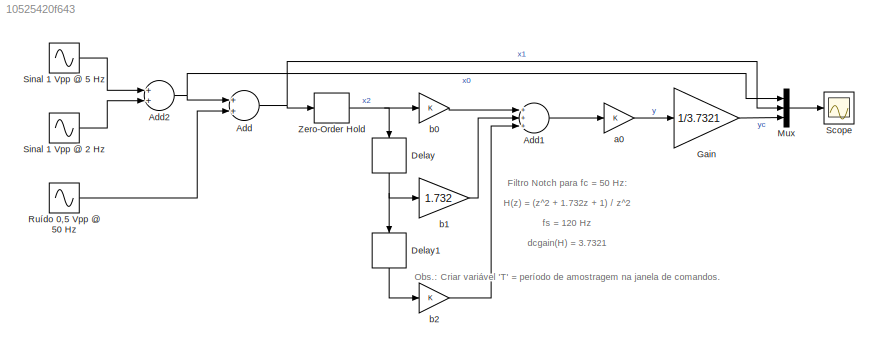
MODEL slx_10525420f643
KIND model
CONFIG AbsTol = auto
CONFIG EnableMultiTasking = off
CONFIG FixedStep = auto
CONFIG MaxStep = auto
CONFIG MinStep = auto
CONFIG RelTol = 1e-3
CONFIG SampleTimeConstraint = Unconstrained
CONFIG Solver = VariableStepAuto
CONFIG SolverName = VariableStepAuto
CONFIG StartTime = 0.0
CONFIG StopTime = 1
BLOCK [Sum] Add
  InputSameDT = off
  OutDataTypeStr = Inherit: Inherit via internal rule
  Ports = [2, 1]
  SaturateOnIntegerOverflow = off
BLOCK [Sum] Add1
  InputSameDT = off
  Inputs = +++
  OutDataTypeStr = Inherit: Inherit via internal rule
  Ports = [3, 1]
  SaturateOnIntegerOverflow = off
BLOCK [Sum] Add2
  InputSameDT = off
  OutDataTypeStr = Inherit: Inherit via internal rule
  Ports = [2, 1]
  SaturateOnIntegerOverflow = off
BLOCK [Delay] Delay
  DelayLength = 1
  InputPortMap = u0
  Ports = [1, 1]
  SampleTime = T
BLOCK [Delay] Delay1
  DelayLength = 1
  InputPortMap = u0
  Ports = [1, 1]
  SampleTime = T
BLOCK [Gain] Gain
  Gain = 1/3.7321
  OutDataTypeStr = Inherit: Inherit via internal rule
  ParamDataTypeStr = Inherit: Inherit via internal rule
  SaturateOnIntegerOverflow = off
BLOCK [Mux] Mux
  DisplayOption = bar
  Inputs = 3
  Ports = [3, 1]
BLOCK [Sin] Ruído 0,5 Vpp @ 50 Hz
  Amplitude = 0.5
  Frequency = 2*pi*50
  Phase = pi/2
  Ports = [0, 1]
  SampleTime = 1/500
BLOCK [Scope] Scope
  Floating = off
  NumInputPorts = 1
  Ports = [1]
  ScopeSpecificationString = Simulink.scopes.TimeScopeBlockCfg('CurrentConfiguration', extmgr.ConfigurationSet(extmgr.Configuration('Core','General UI',true,'FigureColor',[1 1 1]),extmgr.Configuration('Core','Source UI',true),extmgr.Configuration('Sources','WiredSimulink',true),extmgr.Configuration('Visuals','Time Domain',true,'SerializedDisplays',{struct('MinYLimReal','-3.04836','MaxYLimReal','2.92467','YLabelReal','','MinYL...<+1835ch>
BLOCK [Sin] Sinal 1 Vpp @ 2 Hz
  Frequency = 2*pi*2
  Phase = pi/2
  Ports = [0, 1]
  SampleTime = 1/200
BLOCK [Sin] Sinal 1 Vpp @ 5 Hz
  Frequency = 2*pi*5
  Ports = [0, 1]
  SampleTime = 1/50
BLOCK [ZeroOrderHold] Zero-Order Hold 
  SampleTime = T
BLOCK [Gain] a0
  OutDataTypeStr = Inherit: Inherit via internal rule
  ParamDataTypeStr = Inherit: Inherit via internal rule
  SaturateOnIntegerOverflow = off
BLOCK [Gain] b0
  OutDataTypeStr = Inherit: Inherit via internal rule
  ParamDataTypeStr = Inherit: Inherit via internal rule
  SaturateOnIntegerOverflow = off
BLOCK [Gain] b1
  Gain = 1.732
  OutDataTypeStr = Inherit: Inherit via internal rule
  ParamDataTypeStr = Inherit: Inherit via internal rule
  SaturateOnIntegerOverflow = off
BLOCK [Gain] b2
  OutDataTypeStr = Inherit: Inherit via internal rule
  ParamDataTypeStr = Inherit: Inherit via internal rule
  SaturateOnIntegerOverflow = off
ANNOTATION (root): Filtro Notch para fc = 50 Hz:
ANNOTATION (root): H(z) = (z^2 + 1.732z + 1) / z^2
ANNOTATION (root): Obs.: Criar variável 'T' = período de amostragem na janela de comandos.
ANNOTATION (root): dcgain(H) = 3.7321
ANNOTATION (root): fs = 120 Hz
LINE Add1:1 -> a0:1
NET Add2:1 -> Add:1, Mux:1
NET Add:1 -> Mux:2, Zero-Order Hold :1
LINE Delay1:1 -> b2:1
NET Delay:1 -> Delay1:1, b1:1
LINE Gain:1 -> Mux:3
LINE Mux:1 -> Scope:1
LINE Ruído 0,5 Vpp @ 50 Hz:1 -> Add:2
LINE Sinal 1 Vpp @ 2 Hz:1 -> Add2:2
LINE Sinal 1 Vpp @ 5 Hz:1 -> Add2:1
NET Zero-Order Hold :1 -> Delay:1, b0:1
LINE a0:1 -> Gain:1
LINE b0:1 -> Add1:1
LINE b1:1 -> Add1:2
LINE b2:1 -> Add1:3
note: NET lines group one-source signal fan-out (src -> all destinations, sorted); 1:1 wires keep LINE
